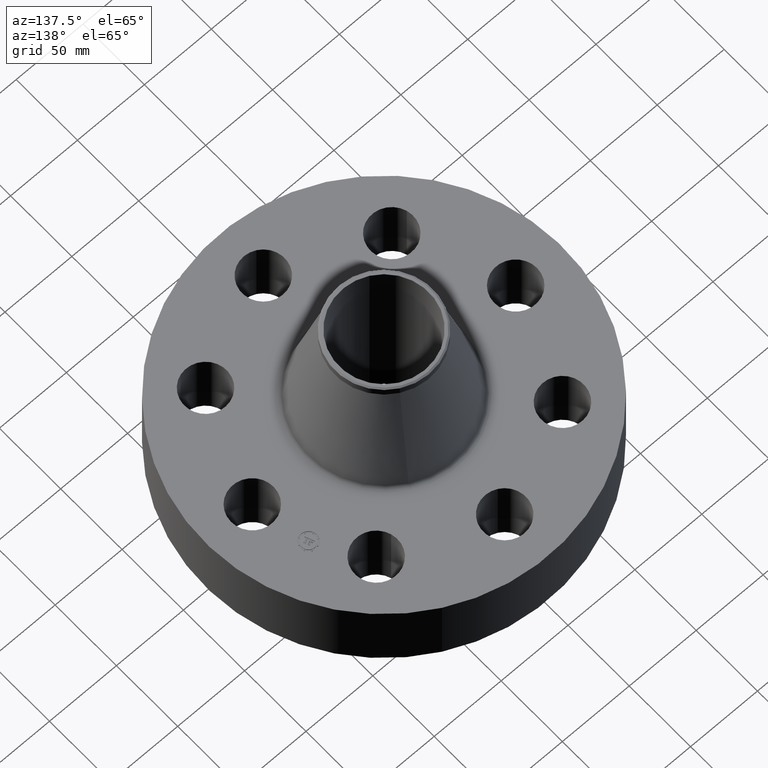
[diagram: clean part render]
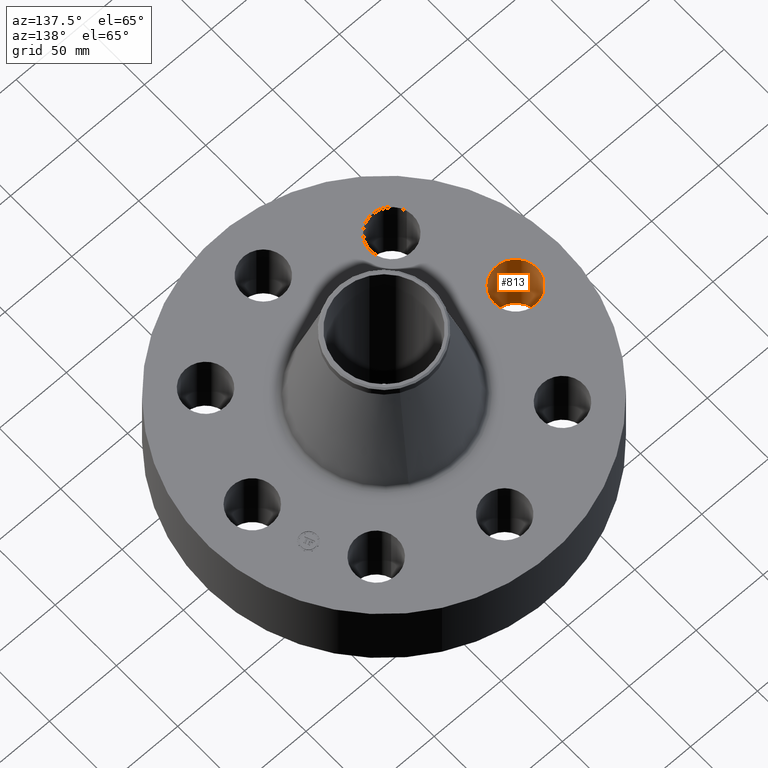
[diagram: same view with one face highlighted and labeled with its STEP entity id]
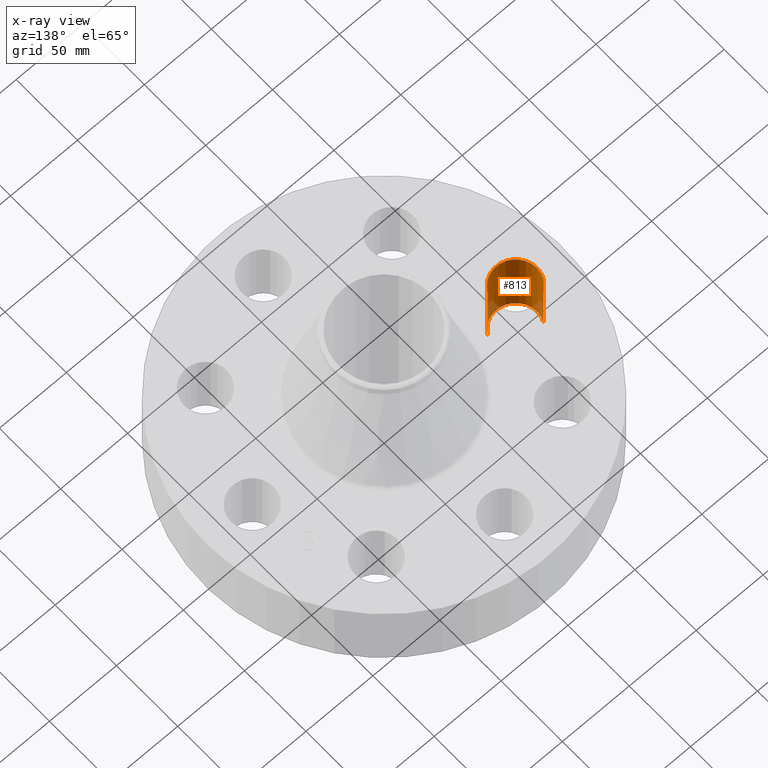
[diagram: x-ray of the same camera — body ghosted, the highlighted face saturated]
A machine part, auxiliary view. The second image highlights one B-rep face of the part: STEP entity #813.
The next image is the same camera in x-ray: the body ghosted, the highlighted face saturated — about 10% of this face is hidden behind the body in this view.
In plain terms, the highlighted cylindrical surface (edge-blend (fillet) strip) has radius 15.875 mm, axis along (-0, 0, -1).
Its self-contained STEP definition (entity closure, byte-faithful):
#497=AXIS2_PLACEMENT_3D('Circle Axis2P3D',#495,#496,$) ;
#786=AXIS2_PLACEMENT_3D('Cylinder Axis2P3D',#783,#784,#785) ;
#804=AXIS2_PLACEMENT_3D('Circle Axis2P3D',#802,#803,$) ;
#495=CARTESIAN_POINT('Axis2P3D Location',(-3.87500000002,-5.59482469102E-016,0.)) ;
#499=CARTESIAN_POINT('Vertex',(-3.32651089883,-0.299640961629,0.)) ;
#501=CARTESIAN_POINT('Vertex',(-4.4234891012,0.299640961629,-2.79741234551E-016)) ;
#783=CARTESIAN_POINT('Axis2P3D Location',(-3.87500000002,-4.74550634671E-016,2.24606299213)) ;
#788=CARTESIAN_POINT('Line Origine',(-3.32651089883,-0.299640961629,1.125)) ;
#792=CARTESIAN_POINT('Vertex',(-3.32651089883,-0.299640961629,2.25000000001)) ;
#795=CARTESIAN_POINT('Line Origine',(-4.4234891012,0.299640961629,1.125)) ;
#799=CARTESIAN_POINT('Vertex',(-4.4234891012,0.299640961629,2.25000000001)) ;
#802=CARTESIAN_POINT('Axis2P3D Location',(-3.87500000002,-4.74550634671E-016,2.25000000001)) ;
#496=DIRECTION('Axis2P3D Direction',(0.,0.,-0.0393700787402)) ;
#784=DIRECTION('Axis2P3D Direction',(-0.,0.,-0.0393700787402)) ;
#785=DIRECTION('Axis2P3D XDirection',(-0.0345504945626,0.0188750212049,0.)) ;
#789=DIRECTION('Vector Direction',(0.,0.,-0.0393700787402)) ;
#796=DIRECTION('Vector Direction',(0.,0.,-0.0393700787402)) ;
#803=DIRECTION('Axis2P3D Direction',(-0.,0.,-0.0393700787402)) ;
#790=VECTOR('Line Direction',#789,0.0393700787402) ;
#797=VECTOR('Line Direction',#796,0.0393700787402) ;
#808=ORIENTED_EDGE('',*,*,#794,.F.) ;
#809=ORIENTED_EDGE('',*,*,#503,.T.) ;
#810=ORIENTED_EDGE('',*,*,#801,.T.) ;
#811=ORIENTED_EDGE('',*,*,#806,.F.) ;
#813=ADVANCED_FACE('PartBody',(#812),#787,.F.) ;
#498=CIRCLE('generated circle',#497,0.625000000002) ;
#805=CIRCLE('generated circle',#804,0.625000000002) ;
#787=CYLINDRICAL_SURFACE('generated cylinder',#786,0.625000000002) ;
#503=EDGE_CURVE('',#500,#502,#498,.T.) ;
#794=EDGE_CURVE('',#500,#793,#791,.F.) ;
#801=EDGE_CURVE('',#502,#800,#798,.F.) ;
#806=EDGE_CURVE('',#793,#800,#805,.T.) ;
#807=EDGE_LOOP('',(#808,#809,#810,#811)) ;
#812=FACE_OUTER_BOUND('',#807,.T.) ;
#791=LINE('Line',#788,#790) ;
#798=LINE('Line',#795,#797) ;
#500=VERTEX_POINT('',#499) ;
#502=VERTEX_POINT('',#501) ;
#793=VERTEX_POINT('',#792) ;
#800=VERTEX_POINT('',#799) ;